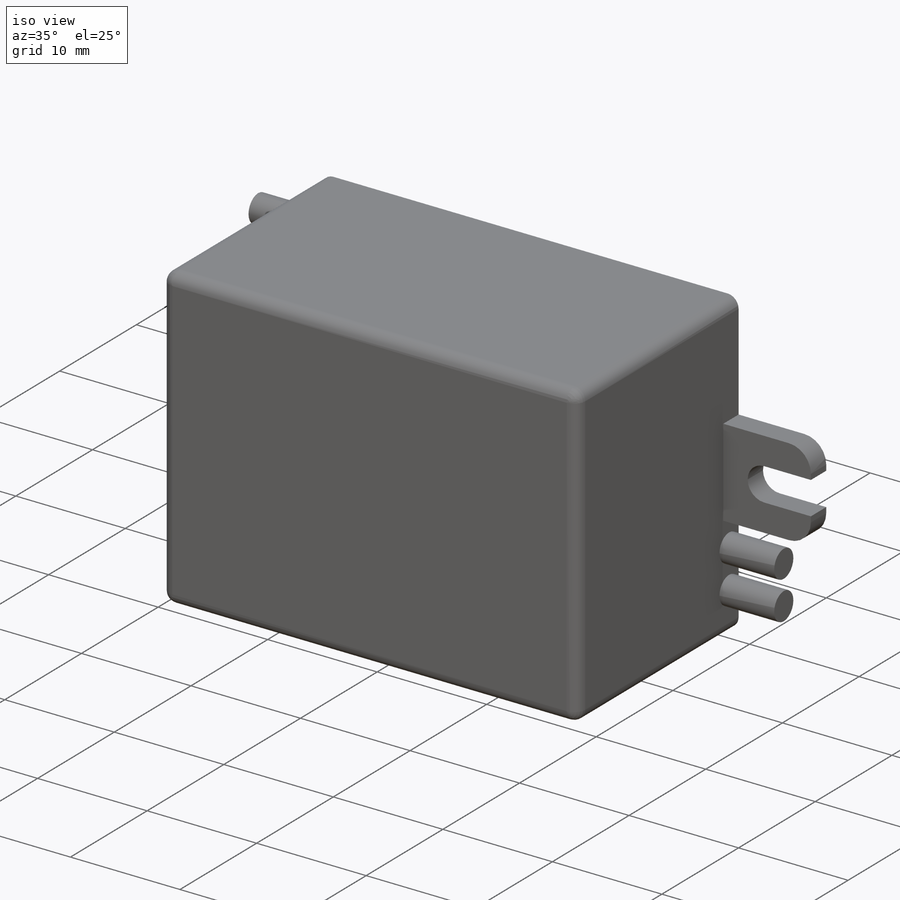
[diagram: iso view]
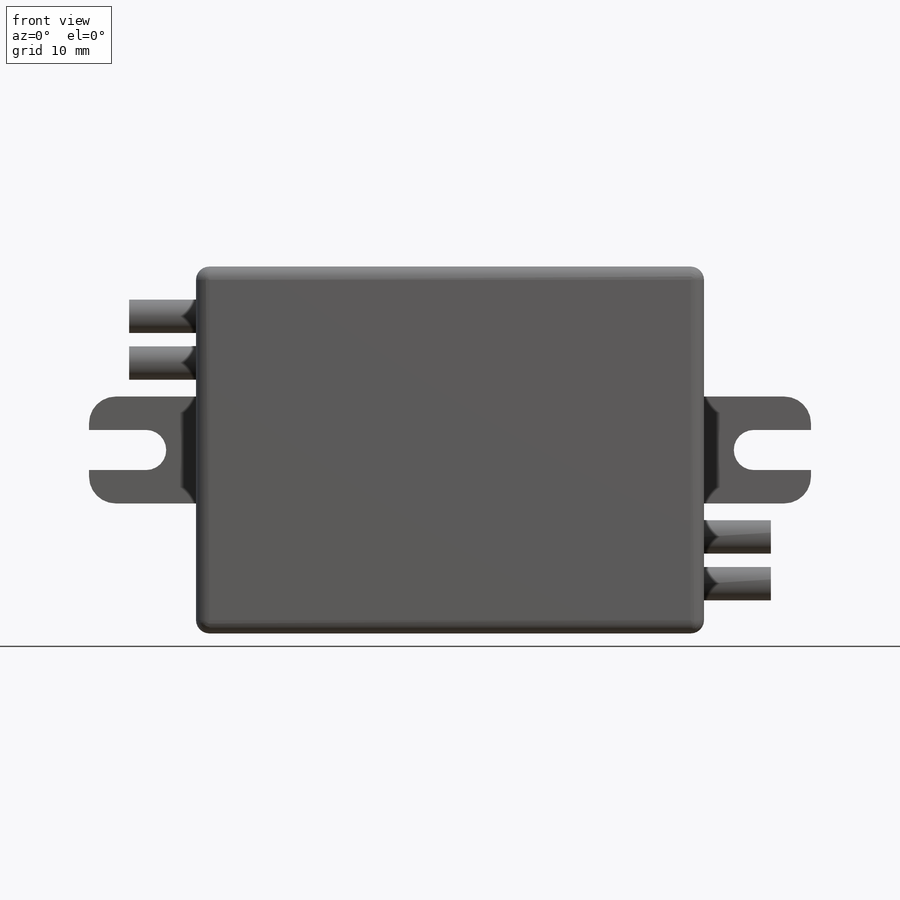
[diagram: front view]
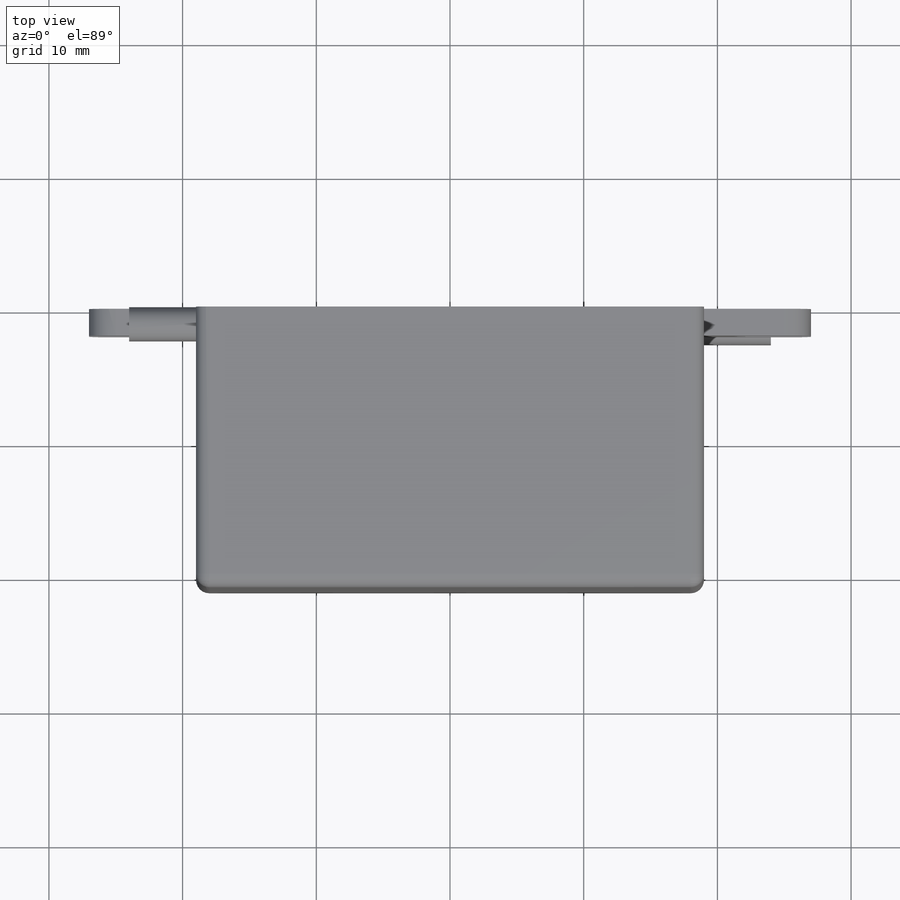
[diagram: top view]
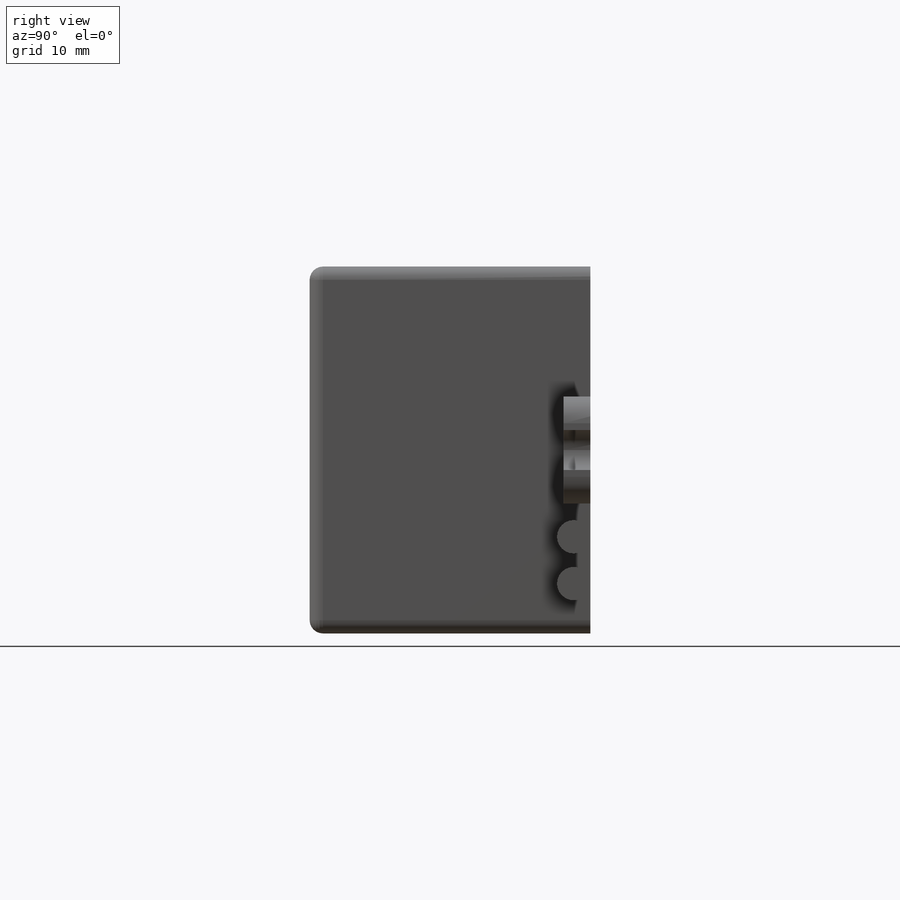
[diagram: right view]
SOLIDWORKS PART (.sldprt)
format: sldprt  version: not decoded by parser v0  size: 308,224 bytes
history: native  units: mm
features: sketch x5, extrude x4, fillet x3, material x1, cut_extrude x1, mirror x1 (+13 scaffold rows collapsed)
feature tree (28):
  scaffold x13  (default folders/planes/origin — collapsed)
  material  "Material <not specified>"
  sketch  "Sketch1"  dims[D1=38.0mm]
  extrude  "Boss-Extrude1"  Depth=21mm
  sketch  "Sketch2"  dims[D1=8.0mm]
  extrude  "Boss-Extrude2"  Depth=2mm
  sketch  "Sketch3"  dims[D1=2.0mm]
  cut_extrude  "Cut-Extrude1"  Depth=2mm
  fillet  "Fillet1"  Radius=2mm
  fillet  "Fillet2"  Radius=1.5mm
  mirror  "Mirror1"
  sketch  "Sketch5"  dims[D1=2.0mm]
  extrude  "Boss-Extrude3"  Depth=5mm
  sketch  "Sketch6"  dims[D1=2.0mm]
  extrude  "Boss-Extrude4"  Depth=5mm
  fillet  "Fillet5"  Radius=1mm
decode coverage: 13 of 14 modeling features carry decoded parameters
note: suppression state not decoded; provenance and decode notes live in map.json
